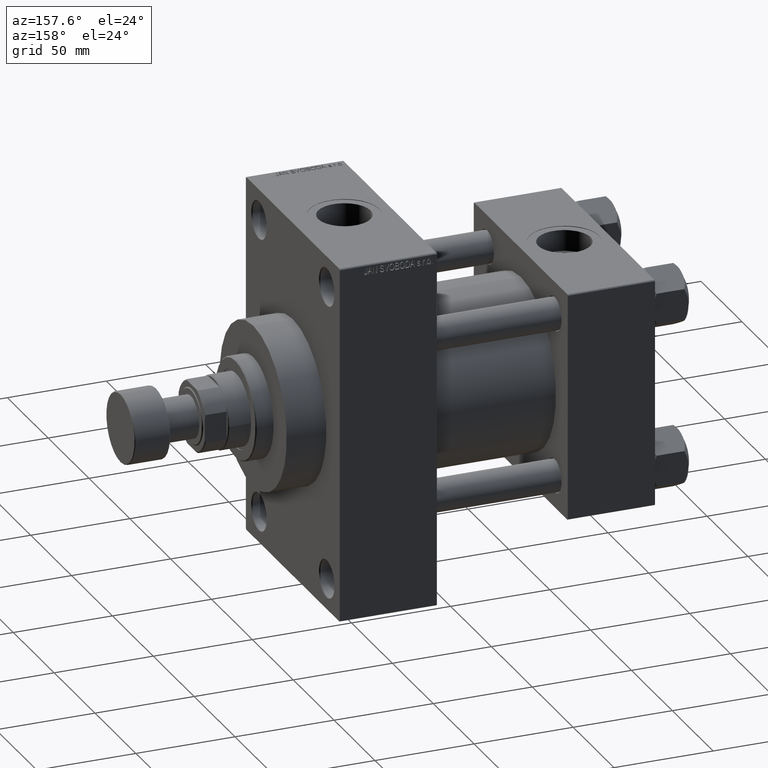
[diagram: clean part render]
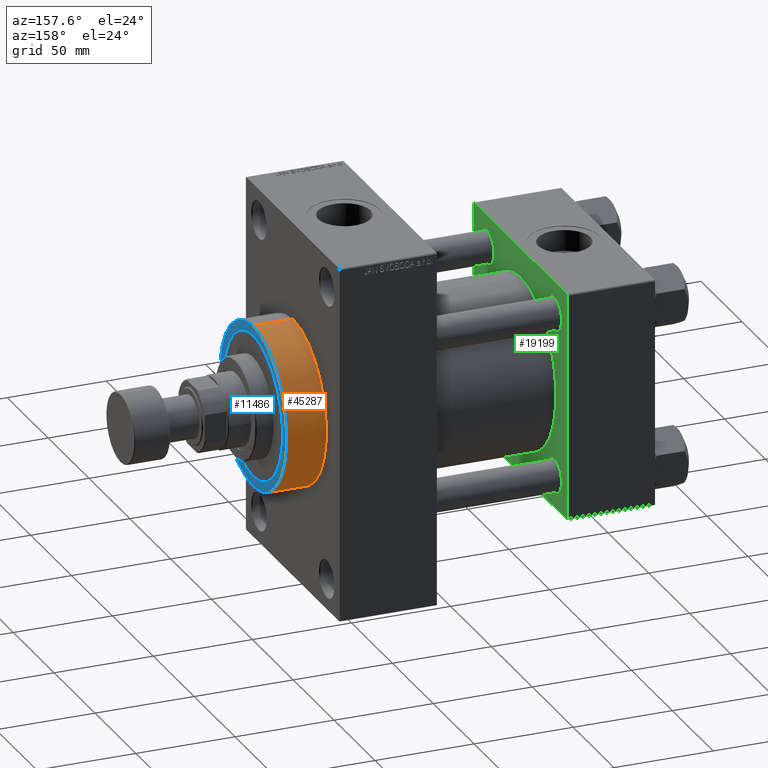
[diagram: same view with three faces highlighted in distinct colors, each labeled with its STEP entity id]
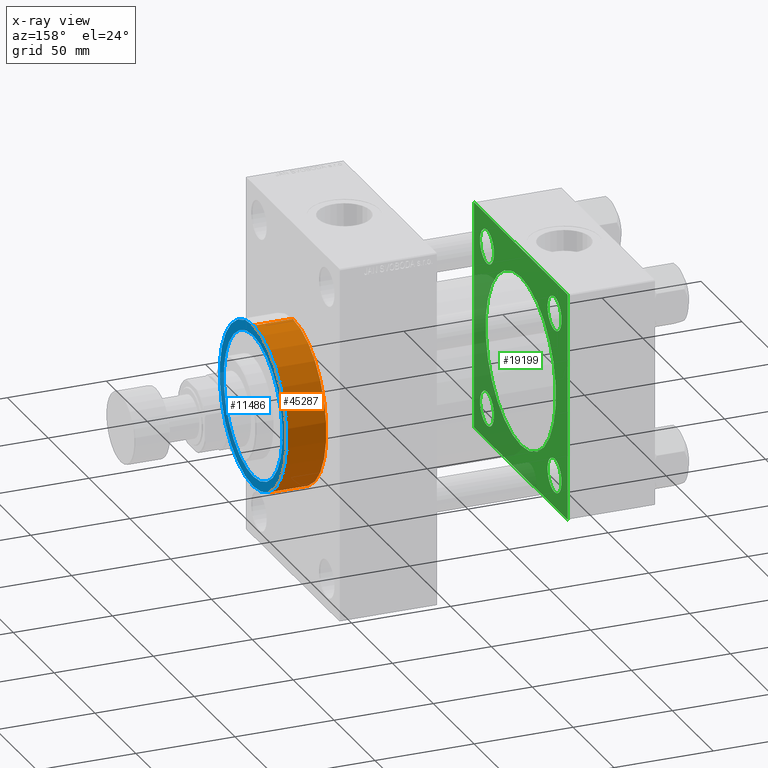
[diagram: x-ray of the same camera — body ghosted, the three highlighted faces saturated]
A machine part, auxiliary view with three faces highlighted in distinct colors.
The next image is the same camera in x-ray (body ghosted, the three faces saturated) — at least one of them is partly hidden behind the body in this view.
Their STEP definitions:

[orange] entity #45287 — the highlighted cylindrical surface (partial cylindrical patch) has radius 41 mm, axis along (-1, -0, -0).
#516 = VERTEX_POINT ( 'NONE', #41673 ) ;
#691 = CARTESIAN_POINT ( 'NONE',  ( 179.0000000000000000, 5.021051876504148963E-15, -41.00000000000000000 ) ) ;
#5048 = CARTESIAN_POINT ( 'NONE',  ( 159.0000000000000000, 5.021051876504148963E-15, -41.00000000000000000 ) ) ;
#8365 = DIRECTION ( 'NONE',  ( 1.000000000000000000, 0.000000000000000000, 0.000000000000000000 ) ) ;
#9345 = VERTEX_POINT ( 'NONE', #40939 ) ;
#11682 = DIRECTION ( 'NONE',  ( -1.000000000000000000, -0.000000000000000000, -0.000000000000000000 ) ) ;
#12850 = CARTESIAN_POINT ( 'NONE',  ( 159.0000000000000000, 0.000000000000000000, 41.00000000000000000 ) ) ;
#12912 = ORIENTED_EDGE ( 'NONE', *, *, #25072, .F. ) ;
#13603 = EDGE_CURVE ( 'NONE', #28776, #31064, #40119, .T. ) ;
#15232 = DIRECTION ( 'NONE',  ( 0.000000000000000000, 0.000000000000000000, 1.000000000000000000 ) ) ;
#18709 = AXIS2_PLACEMENT_3D ( 'NONE', #34204, #33479, #15232 ) ;
#19522 = CARTESIAN_POINT ( 'NONE',  ( 159.0000000000000000, 0.000000000000000000, 0.000000000000000000 ) ) ;
#21426 = AXIS2_PLACEMENT_3D ( 'NONE', #19522, #8365, #45110 ) ;
#22846 = LINE ( 'NONE', #691, #33605 ) ;
#23111 = CARTESIAN_POINT ( 'NONE',  ( 179.0000000000000000, 0.000000000000000000, 41.00000000000000000 ) ) ;
#25072 = EDGE_CURVE ( 'NONE', #516, #31064, #41634, .T. ) ;
#26311 = ORIENTED_EDGE ( 'NONE', *, *, #36151, .F. ) ;
#28776 = VERTEX_POINT ( 'NONE', #5048 ) ;
#30382 = DIRECTION ( 'NONE',  ( -1.000000000000000000, -0.000000000000000000, -0.000000000000000000 ) ) ;
#30747 = DIRECTION ( 'NONE',  ( 1.000000000000000000, 0.000000000000000000, 0.000000000000000000 ) ) ;
#31064 = VERTEX_POINT ( 'NONE', #12850 ) ;
#32134 = EDGE_LOOP ( 'NONE', ( #26311, #37479, #45080, #12912 ) ) ;
#32171 = AXIS2_PLACEMENT_3D ( 'NONE', #34404, #30747, #34157 ) ;
#33479 = DIRECTION ( 'NONE',  ( -1.000000000000000000, -0.000000000000000000, -0.000000000000000000 ) ) ;
#33605 = VECTOR ( 'NONE', #30382, 1000.000000000000000 ) ;
#34157 = DIRECTION ( 'NONE',  ( 0.000000000000000000, 0.000000000000000000, -1.000000000000000000 ) ) ;
#34204 = CARTESIAN_POINT ( 'NONE',  ( 179.0000000000000000, 0.000000000000000000, 0.000000000000000000 ) ) ;
#34404 = CARTESIAN_POINT ( 'NONE',  ( 179.0000000000000000, 0.000000000000000000, 0.000000000000000000 ) ) ;
#36151 = EDGE_CURVE ( 'NONE', #9345, #516, #36716, .T. ) ;
#36716 = CIRCLE ( 'NONE', #32171, 41.00000000000000000 ) ;
#37479 = ORIENTED_EDGE ( 'NONE', *, *, #48112, .T. ) ;
#40119 = CIRCLE ( 'NONE', #21426, 41.00000000000000000 ) ;
#40347 = VECTOR ( 'NONE', #11682, 1000.000000000000000 ) ;
#40939 = CARTESIAN_POINT ( 'NONE',  ( 179.0000000000000000, 5.021051876504148963E-15, -41.00000000000000000 ) ) ;
#41634 = LINE ( 'NONE', #23111, #40347 ) ;
#41673 = CARTESIAN_POINT ( 'NONE',  ( 179.0000000000000000, 0.000000000000000000, 41.00000000000000000 ) ) ;
#44453 = CYLINDRICAL_SURFACE ( 'NONE', #18709, 41.00000000000000000 ) ;
#45080 = ORIENTED_EDGE ( 'NONE', *, *, #13603, .T. ) ;
#45110 = DIRECTION ( 'NONE',  ( 0.000000000000000000, 0.000000000000000000, -1.000000000000000000 ) ) ;
#45173 = FACE_OUTER_BOUND ( 'NONE', #32134, .T. ) ;
#45287 = ADVANCED_FACE ( 'NONE', ( #45173 ), #44453, .T. ) ;
#48112 = EDGE_CURVE ( 'NONE', #9345, #28776, #22846, .T. ) ;

[blue] entity #11486 — the highlighted planar face has unit normal (1, 0, 0).
#177 = ORIENTED_EDGE ( 'NONE', *, *, #36151, .T. ) ;
#516 = VERTEX_POINT ( 'NONE', #41673 ) ;
#1526 = CARTESIAN_POINT ( 'NONE',  ( 179.0000000000000000, 4.408728476930470856E-15, 36.00000000000000000 ) ) ;
#2831 = VERTEX_POINT ( 'NONE', #1526 ) ;
#4220 = AXIS2_PLACEMENT_3D ( 'NONE', #11634, #22570, #44988 ) ;
#4525 = AXIS2_PLACEMENT_3D ( 'NONE', #17729, #21143, #40158 ) ;
#5333 = VERTEX_POINT ( 'NONE', #13602 ) ;
#5472 = AXIS2_PLACEMENT_3D ( 'NONE', #24138, #47022, #43374 ) ;
#9345 = VERTEX_POINT ( 'NONE', #40939 ) ;
#11486 = ADVANCED_FACE ( 'NONE', ( #37198, #44752 ), #48150, .T. ) ;
#11597 = ORIENTED_EDGE ( 'NONE', *, *, #19303, .F. ) ;
#11634 = CARTESIAN_POINT ( 'NONE',  ( 179.0000000000000000, 0.000000000000000000, 0.000000000000000000 ) ) ;
#13602 = CARTESIAN_POINT ( 'NONE',  ( 179.0000000000000000, 0.000000000000000000, -36.00000000000000000 ) ) ;
#15021 = EDGE_LOOP ( 'NONE', ( #33890, #177 ) ) ;
#17316 = CIRCLE ( 'NONE', #40660, 36.00000000000000000 ) ;
#17729 = CARTESIAN_POINT ( 'NONE',  ( 179.0000000000000000, 0.000000000000000000, 0.000000000000000000 ) ) ;
#19303 = EDGE_CURVE ( 'NONE', #5333, #2831, #31722, .T. ) ;
#21143 = DIRECTION ( 'NONE',  ( 1.000000000000000000, 0.000000000000000000, 0.000000000000000000 ) ) ;
#22208 = CARTESIAN_POINT ( 'NONE',  ( 179.0000000000000000, 0.000000000000000000, 0.000000000000000000 ) ) ;
#22570 = DIRECTION ( 'NONE',  ( 1.000000000000000000, 0.000000000000000000, 0.000000000000000000 ) ) ;
#24138 = CARTESIAN_POINT ( 'NONE',  ( 179.0000000000000000, 0.000000000000000000, 0.000000000000000000 ) ) ;
#24967 = DIRECTION ( 'NONE',  ( 1.000000000000000000, 0.000000000000000000, 0.000000000000000000 ) ) ;
#26697 = EDGE_LOOP ( 'NONE', ( #11597, #38140 ) ) ;
#30747 = DIRECTION ( 'NONE',  ( 1.000000000000000000, 0.000000000000000000, 0.000000000000000000 ) ) ;
#31722 = CIRCLE ( 'NONE', #4525, 36.00000000000000000 ) ;
#32171 = AXIS2_PLACEMENT_3D ( 'NONE', #34404, #30747, #34157 ) ;
#33742 = EDGE_CURVE ( 'NONE', #2831, #5333, #17316, .T. ) ;
#33890 = ORIENTED_EDGE ( 'NONE', *, *, #44673, .T. ) ;
#34157 = DIRECTION ( 'NONE',  ( 0.000000000000000000, 0.000000000000000000, -1.000000000000000000 ) ) ;
#34404 = CARTESIAN_POINT ( 'NONE',  ( 179.0000000000000000, 0.000000000000000000, 0.000000000000000000 ) ) ;
#36151 = EDGE_CURVE ( 'NONE', #9345, #516, #36716, .T. ) ;
#36716 = CIRCLE ( 'NONE', #32171, 41.00000000000000000 ) ;
#37198 = FACE_BOUND ( 'NONE', #26697, .T. ) ;
#37569 = DIRECTION ( 'NONE',  ( 0.000000000000000000, 0.000000000000000000, -1.000000000000000000 ) ) ;
#38140 = ORIENTED_EDGE ( 'NONE', *, *, #33742, .F. ) ;
#39697 = CIRCLE ( 'NONE', #5472, 41.00000000000000000 ) ;
#40158 = DIRECTION ( 'NONE',  ( 0.000000000000000000, 0.000000000000000000, -1.000000000000000000 ) ) ;
#40660 = AXIS2_PLACEMENT_3D ( 'NONE', #22208, #24967, #37569 ) ;
#40939 = CARTESIAN_POINT ( 'NONE',  ( 179.0000000000000000, 5.021051876504148963E-15, -41.00000000000000000 ) ) ;
#41673 = CARTESIAN_POINT ( 'NONE',  ( 179.0000000000000000, 0.000000000000000000, 41.00000000000000000 ) ) ;
#43374 = DIRECTION ( 'NONE',  ( 0.000000000000000000, 0.000000000000000000, -1.000000000000000000 ) ) ;
#44673 = EDGE_CURVE ( 'NONE', #516, #9345, #39697, .T. ) ;
#44752 = FACE_OUTER_BOUND ( 'NONE', #15021, .T. ) ;
#44988 = DIRECTION ( 'NONE',  ( 0.000000000000000000, 0.000000000000000000, -1.000000000000000000 ) ) ;
#47022 = DIRECTION ( 'NONE',  ( 1.000000000000000000, 0.000000000000000000, 0.000000000000000000 ) ) ;
#48150 = PLANE ( 'NONE',  #4220 ) ;

[green] entity #19199 — the highlighted planar face has unit normal (-1, 0, 0).
#164 = EDGE_CURVE ( 'NONE', #10688, #41441, #25965, .T. ) ;
#340 = DIRECTION ( 'NONE',  ( 0.000000000000000000, 0.000000000000000000, 1.000000000000000000 ) ) ;
#681 = CARTESIAN_POINT ( 'NONE',  ( 44.00000000000000000, 41.34999999999999432, -32.84999999999990905 ) ) ;
#1013 = LINE ( 'NONE', #15863, #13987 ) ;
#1210 = DIRECTION ( 'NONE',  ( -1.000000000000000000, 0.000000000000000000, -0.000000000000000000 ) ) ;
#1227 = CARTESIAN_POINT ( 'NONE',  ( 44.00000000000000000, 57.00000000000001421, 57.50000000000001421 ) ) ;
#1591 = DIRECTION ( 'NONE',  ( 0.000000000000000000, 0.000000000000000000, 1.000000000000000000 ) ) ;
#1721 = FACE_BOUND ( 'NONE', #36436, .T. ) ;
#1793 = AXIS2_PLACEMENT_3D ( 'NONE', #43849, #10494, #40194 ) ;
#1920 = ORIENTED_EDGE ( 'NONE', *, *, #39617, .T. ) ;
#2523 = DIRECTION ( 'NONE',  ( 0.000000000000000000, -1.000000000000000000, -1.206764157201257291E-16 ) ) ;
#3057 = ORIENTED_EDGE ( 'NONE', *, *, #3405, .T. ) ;
#3405 = EDGE_CURVE ( 'NONE', #23172, #29007, #33610, .T. ) ;
#3758 = AXIS2_PLACEMENT_3D ( 'NONE', #22162, #44592, #11241 ) ;
#4653 = FACE_BOUND ( 'NONE', #44480, .T. ) ;
#4666 = ORIENTED_EDGE ( 'NONE', *, *, #164, .T. ) ;
#4851 = EDGE_LOOP ( 'NONE', ( #25297, #29676 ) ) ;
#4863 = CIRCLE ( 'NONE', #21928, 8.500000000000090594 ) ;
#4979 = VECTOR ( 'NONE', #37017, 999.9999999999998863 ) ;
#5181 = EDGE_CURVE ( 'NONE', #8450, #27494, #29748, .T. ) ;
#5480 = LINE ( 'NONE', #12065, #19538 ) ;
#5616 = ORIENTED_EDGE ( 'NONE', *, *, #19043, .F. ) ;
#5749 = VERTEX_POINT ( 'NONE', #39538 ) ;
#6086 = CIRCLE ( 'NONE', #29388, 43.00000000000000000 ) ;
#6425 = LINE ( 'NONE', #28797, #29490 ) ;
#6724 = AXIS2_PLACEMENT_3D ( 'NONE', #45026, #1210, #34304 ) ;
#7001 = VECTOR ( 'NONE', #24127, 1000.000000000000000 ) ;
#7155 = DIRECTION ( 'NONE',  ( -1.000000000000000000, 0.000000000000000000, -0.000000000000000000 ) ) ;
#7295 = CARTESIAN_POINT ( 'NONE',  ( 44.00000000000000000, -41.34999999999998721, 41.35000000000000142 ) ) ;
#7715 = VERTEX_POINT ( 'NONE', #21321 ) ;
#8450 = VERTEX_POINT ( 'NONE', #681 ) ;
#8555 = PLANE ( 'NONE',  #15391 ) ;
#8790 = LINE ( 'NONE', #1227, #45957 ) ;
#8997 = EDGE_LOOP ( 'NONE', ( #45135, #14308, #27759, #28285, #44602, #1920, #35855, #4666 ) ) ;
#9219 = VERTEX_POINT ( 'NONE', #40217 ) ;
#9379 = CARTESIAN_POINT ( 'NONE',  ( 44.00000000000000000, -41.34999999999998721, 41.35000000000000142 ) ) ;
#9505 = FACE_BOUND ( 'NONE', #28420, .T. ) ;
#9643 = CARTESIAN_POINT ( 'NONE',  ( 44.00000000000000000, 2.663896022368408223E-15, -43.00000000000000000 ) ) ;
#9842 = CIRCLE ( 'NONE', #6724, 8.500000000000090594 ) ;
#10128 = EDGE_LOOP ( 'NONE', ( #34108, #14406 ) ) ;
#10494 = DIRECTION ( 'NONE',  ( -1.000000000000000000, 0.000000000000000000, -0.000000000000000000 ) ) ;
#10688 = VERTEX_POINT ( 'NONE', #44500 ) ;
#10689 = DIRECTION ( 'NONE',  ( -1.000000000000000000, 0.000000000000000000, -0.000000000000000000 ) ) ;
#10727 = CARTESIAN_POINT ( 'NONE',  ( 44.00000000000000000, -57.50000000000000000, 56.99999999999997868 ) ) ;
#10772 = CARTESIAN_POINT ( 'NONE',  ( 44.00000000000000000, -41.34999999999998721, -49.85000000000009379 ) ) ;
#10989 = DIRECTION ( 'NONE',  ( 1.000000000000000000, -0.000000000000000000, 0.000000000000000000 ) ) ;
#11182 = VERTEX_POINT ( 'NONE', #23127 ) ;
#11241 = DIRECTION ( 'NONE',  ( 0.000000000000000000, 0.000000000000000000, 1.000000000000000000 ) ) ;
#11559 = ORIENTED_EDGE ( 'NONE', *, *, #47906, .T. ) ;
#11828 = CIRCLE ( 'NONE', #41412, 8.500000000000090594 ) ;
#11985 = EDGE_CURVE ( 'NONE', #42035, #17022, #37681, .T. ) ;
#11991 = LINE ( 'NONE', #30719, #22777 ) ;
#12065 = CARTESIAN_POINT ( 'NONE',  ( 44.00000000000000000, -57.50000000000000000, 57.49999999999999289 ) ) ;
#12436 = FACE_BOUND ( 'NONE', #4851, .T. ) ;
#12676 = FACE_OUTER_BOUND ( 'NONE', #8997, .T. ) ;
#12856 = DIRECTION ( 'NONE',  ( -1.000000000000000000, 0.000000000000000000, -0.000000000000000000 ) ) ;
#13326 = DIRECTION ( 'NONE',  ( 0.000000000000000000, 0.000000000000000000, 1.000000000000000000 ) ) ;
#13987 = VECTOR ( 'NONE', #45562, 1000.000000000000000 ) ;
#14308 = ORIENTED_EDGE ( 'NONE', *, *, #27477, .T. ) ;
#14351 = AXIS2_PLACEMENT_3D ( 'NONE', #14680, #25637, #340 ) ;
#14406 = ORIENTED_EDGE ( 'NONE', *, *, #44605, .T. ) ;
#14583 = CIRCLE ( 'NONE', #23913, 8.500000000000090594 ) ;
#14680 = CARTESIAN_POINT ( 'NONE',  ( 44.00000000000000000, -2.602085213965210642E-15, 0.000000000000000000 ) ) ;
#15126 = EDGE_CURVE ( 'NONE', #32427, #26204, #9842, .T. ) ;
#15391 = AXIS2_PLACEMENT_3D ( 'NONE', #45548, #34338, #42621 ) ;
#15618 = CARTESIAN_POINT ( 'NONE',  ( 44.00000000000000000, -56.99999999999997158, 57.49999999999999289 ) ) ;
#15677 = AXIS2_PLACEMENT_3D ( 'NONE', #7295, #10689, #25773 ) ;
#15863 = CARTESIAN_POINT ( 'NONE',  ( 44.00000000000000000, 57.50000000000000000, -57.00000000000000000 ) ) ;
#16573 = CARTESIAN_POINT ( 'NONE',  ( 44.00000000000000000, 41.34999999999999432, -49.85000000000008669 ) ) ;
#17022 = VERTEX_POINT ( 'NONE', #21485 ) ;
#17761 = CARTESIAN_POINT ( 'NONE',  ( 44.00000000000000000, -41.34999999999998721, 49.85000000000009379 ) ) ;
#17871 = EDGE_CURVE ( 'NONE', #7715, #22043, #14583, .T. ) ;
#18747 = DIRECTION ( 'NONE',  ( 0.000000000000000000, 0.000000000000000000, 1.000000000000000000 ) ) ;
#19031 = EDGE_CURVE ( 'NONE', #27494, #8450, #23938, .T. ) ;
#19043 = EDGE_CURVE ( 'NONE', #17022, #42035, #6086, .T. ) ;
#19199 = ADVANCED_FACE ( 'NONE', ( #9505, #12436, #1721, #19956, #4653, #12676 ), #8555, .F. ) ;
#19538 = VECTOR ( 'NONE', #35168, 1000.000000000000000 ) ;
#19956 = FACE_BOUND ( 'NONE', #10128, .T. ) ;
#20218 = LINE ( 'NONE', #42419, #7001 ) ;
#20780 = DIRECTION ( 'NONE',  ( 0.000000000000000000, 0.000000000000000000, 1.000000000000000000 ) ) ;
#21321 = CARTESIAN_POINT ( 'NONE',  ( 44.00000000000000000, -41.34999999999998721, -32.84999999999991616 ) ) ;
#21485 = CARTESIAN_POINT ( 'NONE',  ( 44.00000000000000000, -2.602085213965210642E-15, 43.00000000000000000 ) ) ;
#21928 = AXIS2_PLACEMENT_3D ( 'NONE', #24682, #32244, #20780 ) ;
#22043 = VERTEX_POINT ( 'NONE', #10772 ) ;
#22148 = LINE ( 'NONE', #10727, #4979 ) ;
#22162 = CARTESIAN_POINT ( 'NONE',  ( 44.00000000000000000, 41.34999999999999432, -41.34999999999999432 ) ) ;
#22678 = CIRCLE ( 'NONE', #15677, 8.500000000000090594 ) ;
#22777 = VECTOR ( 'NONE', #45576, 1000.000000000000000 ) ;
#23127 = CARTESIAN_POINT ( 'NONE',  ( 44.00000000000000000, 57.00000000000001421, 57.50000000000001421 ) ) ;
#23172 = VERTEX_POINT ( 'NONE', #45348 ) ;
#23913 = AXIS2_PLACEMENT_3D ( 'NONE', #32228, #7155, #47798 ) ;
#23938 = CIRCLE ( 'NONE', #3758, 8.500000000000090594 ) ;
#24127 = DIRECTION ( 'NONE',  ( 0.000000000000000000, -1.000000000000000000, -1.810146235801885567E-16 ) ) ;
#24682 = CARTESIAN_POINT ( 'NONE',  ( 44.00000000000000000, -41.34999999999998721, -41.35000000000000142 ) ) ;
#25297 = ORIENTED_EDGE ( 'NONE', *, *, #19031, .T. ) ;
#25637 = DIRECTION ( 'NONE',  ( 1.000000000000000000, -0.000000000000000000, 0.000000000000000000 ) ) ;
#25773 = DIRECTION ( 'NONE',  ( 0.000000000000000000, 0.000000000000000000, 1.000000000000000000 ) ) ;
#25858 = AXIS2_PLACEMENT_3D ( 'NONE', #9379, #34928, #1591 ) ;
#25935 = EDGE_CURVE ( 'NONE', #47655, #41441, #6425, .T. ) ;
#25965 = LINE ( 'NONE', #40826, #47507 ) ;
#26204 = VERTEX_POINT ( 'NONE', #28762 ) ;
#27458 = CARTESIAN_POINT ( 'NONE',  ( 44.00000000000000000, 57.50000000000000000, 57.00000000000004263 ) ) ;
#27477 = EDGE_CURVE ( 'NONE', #47655, #9219, #1013, .T. ) ;
#27494 = VERTEX_POINT ( 'NONE', #16573 ) ;
#27759 = ORIENTED_EDGE ( 'NONE', *, *, #38568, .F. ) ;
#28285 = ORIENTED_EDGE ( 'NONE', *, *, #44896, .T. ) ;
#28291 = VERTEX_POINT ( 'NONE', #15618 ) ;
#28420 = EDGE_LOOP ( 'NONE', ( #29477, #47446 ) ) ;
#28762 = CARTESIAN_POINT ( 'NONE',  ( 44.00000000000000000, 41.34999999999999432, 49.85000000000008669 ) ) ;
#28797 = CARTESIAN_POINT ( 'NONE',  ( 44.00000000000000000, 57.50000000000000000, -57.49999999999999289 ) ) ;
#29007 = VERTEX_POINT ( 'NONE', #17761 ) ;
#29334 = CARTESIAN_POINT ( 'NONE',  ( 44.00000000000000000, 41.34999999999999432, 32.84999999999990905 ) ) ;
#29388 = AXIS2_PLACEMENT_3D ( 'NONE', #33616, #10989, #18747 ) ;
#29477 = ORIENTED_EDGE ( 'NONE', *, *, #36036, .T. ) ;
#29490 = VECTOR ( 'NONE', #2523, 1000.000000000000000 ) ;
#29676 = ORIENTED_EDGE ( 'NONE', *, *, #5181, .T. ) ;
#29748 = CIRCLE ( 'NONE', #1793, 8.500000000000090594 ) ;
#30545 = EDGE_CURVE ( 'NONE', #5749, #10688, #5480, .T. ) ;
#30719 = CARTESIAN_POINT ( 'NONE',  ( 44.00000000000000000, 57.50000000000000000, 57.50000000000001421 ) ) ;
#32228 = CARTESIAN_POINT ( 'NONE',  ( 44.00000000000000000, -41.34999999999998721, -41.35000000000000142 ) ) ;
#32244 = DIRECTION ( 'NONE',  ( -1.000000000000000000, 0.000000000000000000, -0.000000000000000000 ) ) ;
#32427 = VERTEX_POINT ( 'NONE', #29334 ) ;
#33610 = CIRCLE ( 'NONE', #25858, 8.500000000000090594 ) ;
#33616 = CARTESIAN_POINT ( 'NONE',  ( 44.00000000000000000, -2.602085213965210642E-15, 0.000000000000000000 ) ) ;
#34108 = ORIENTED_EDGE ( 'NONE', *, *, #15126, .T. ) ;
#34304 = DIRECTION ( 'NONE',  ( 0.000000000000000000, 0.000000000000000000, 1.000000000000000000 ) ) ;
#34338 = DIRECTION ( 'NONE',  ( -1.000000000000000000, 0.000000000000000000, -0.000000000000000000 ) ) ;
#34928 = DIRECTION ( 'NONE',  ( -1.000000000000000000, 0.000000000000000000, -0.000000000000000000 ) ) ;
#35168 = DIRECTION ( 'NONE',  ( 0.000000000000000000, 6.033820786006285224E-17, -1.000000000000000000 ) ) ;
#35855 = ORIENTED_EDGE ( 'NONE', *, *, #30545, .T. ) ;
#36036 = EDGE_CURVE ( 'NONE', #22043, #7715, #4863, .T. ) ;
#36436 = EDGE_LOOP ( 'NONE', ( #3057, #11559 ) ) ;
#37017 = DIRECTION ( 'NONE',  ( -0.000000000000000000, -0.7071067811865574537, -0.7071067811865376918 ) ) ;
#37258 = DIRECTION ( 'NONE',  ( 0.000000000000000000, -0.7071067811865573427, 0.7071067811865376918 ) ) ;
#37681 = CIRCLE ( 'NONE', #14351, 43.00000000000000000 ) ;
#38568 = EDGE_CURVE ( 'NONE', #47286, #9219, #11991, .T. ) ;
#38669 = CARTESIAN_POINT ( 'NONE',  ( 44.00000000000000000, 41.34999999999999432, 41.34999999999999432 ) ) ;
#39538 = CARTESIAN_POINT ( 'NONE',  ( 44.00000000000000000, -57.50000000000000000, 56.99999999999997868 ) ) ;
#39617 = EDGE_CURVE ( 'NONE', #28291, #5749, #22148, .T. ) ;
#39750 = CARTESIAN_POINT ( 'NONE',  ( 44.00000000000000000, -57.00000000000001421, -57.50000000000000711 ) ) ;
#40194 = DIRECTION ( 'NONE',  ( 0.000000000000000000, 0.000000000000000000, 1.000000000000000000 ) ) ;
#40217 = CARTESIAN_POINT ( 'NONE',  ( 44.00000000000000000, 57.50000000000000000, -56.99999999999997158 ) ) ;
#40826 = CARTESIAN_POINT ( 'NONE',  ( 44.00000000000000000, -57.00000000000001421, -57.50000000000000711 ) ) ;
#41412 = AXIS2_PLACEMENT_3D ( 'NONE', #38669, #12856, #13326 ) ;
#41441 = VERTEX_POINT ( 'NONE', #39750 ) ;
#41450 = ORIENTED_EDGE ( 'NONE', *, *, #11985, .F. ) ;
#42035 = VERTEX_POINT ( 'NONE', #9643 ) ;
#42419 = CARTESIAN_POINT ( 'NONE',  ( 44.00000000000000000, 57.50000000000000000, 57.50000000000001421 ) ) ;
#42621 = DIRECTION ( 'NONE',  ( -0.000000000000000000, 0.000000000000000000, 1.000000000000000000 ) ) ;
#43457 = EDGE_CURVE ( 'NONE', #11182, #28291, #20218, .T. ) ;
#43849 = CARTESIAN_POINT ( 'NONE',  ( 44.00000000000000000, 41.34999999999999432, -41.34999999999999432 ) ) ;
#44480 = EDGE_LOOP ( 'NONE', ( #5616, #41450 ) ) ;
#44500 = CARTESIAN_POINT ( 'NONE',  ( 44.00000000000000000, -57.49999999999999289, -57.00000000000003553 ) ) ;
#44592 = DIRECTION ( 'NONE',  ( -1.000000000000000000, 0.000000000000000000, -0.000000000000000000 ) ) ;
#44602 = ORIENTED_EDGE ( 'NONE', *, *, #43457, .T. ) ;
#44605 = EDGE_CURVE ( 'NONE', #26204, #32427, #11828, .T. ) ;
#44896 = EDGE_CURVE ( 'NONE', #47286, #11182, #8790, .T. ) ;
#45026 = CARTESIAN_POINT ( 'NONE',  ( 44.00000000000000000, 41.34999999999999432, 41.34999999999999432 ) ) ;
#45135 = ORIENTED_EDGE ( 'NONE', *, *, #25935, .F. ) ;
#45348 = CARTESIAN_POINT ( 'NONE',  ( 44.00000000000000000, -41.34999999999998721, 32.84999999999991616 ) ) ;
#45548 = CARTESIAN_POINT ( 'NONE',  ( 44.00000000000000000, 0.000000000000000000, 0.000000000000000000 ) ) ;
#45562 = DIRECTION ( 'NONE',  ( -0.000000000000000000, 0.7071067811865328068, 0.7071067811865622277 ) ) ;
#45576 = DIRECTION ( 'NONE',  ( 0.000000000000000000, 0.000000000000000000, -1.000000000000000000 ) ) ;
#45957 = VECTOR ( 'NONE', #37258, 1000.000000000000114 ) ;
#47286 = VERTEX_POINT ( 'NONE', #27458 ) ;
#47446 = ORIENTED_EDGE ( 'NONE', *, *, #17871, .T. ) ;
#47507 = VECTOR ( 'NONE', #48108, 1000.000000000000000 ) ;
#47655 = VERTEX_POINT ( 'NONE', #47983 ) ;
#47798 = DIRECTION ( 'NONE',  ( 0.000000000000000000, 0.000000000000000000, 1.000000000000000000 ) ) ;
#47906 = EDGE_CURVE ( 'NONE', #29007, #23172, #22678, .T. ) ;
#47983 = CARTESIAN_POINT ( 'NONE',  ( 44.00000000000000000, 57.00000000000002842, -57.49999999999999289 ) ) ;
#48108 = DIRECTION ( 'NONE',  ( 0.000000000000000000, 0.7071067811865524577, -0.7071067811865426878 ) ) ;